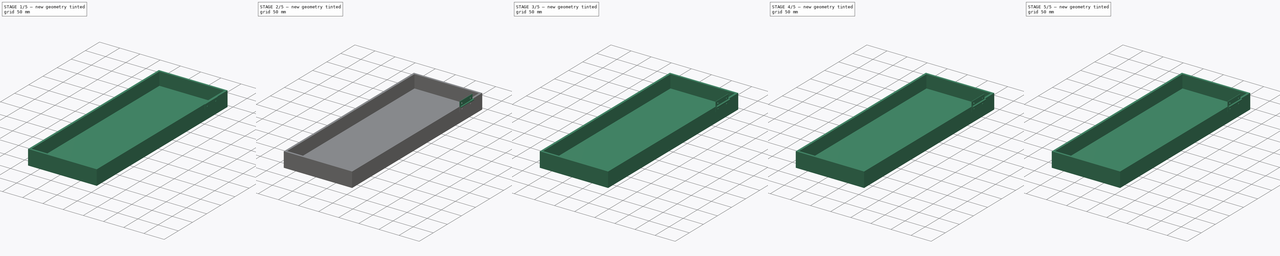
[diagram: build sequence overview — one tinted view per stage of 5, left to right]
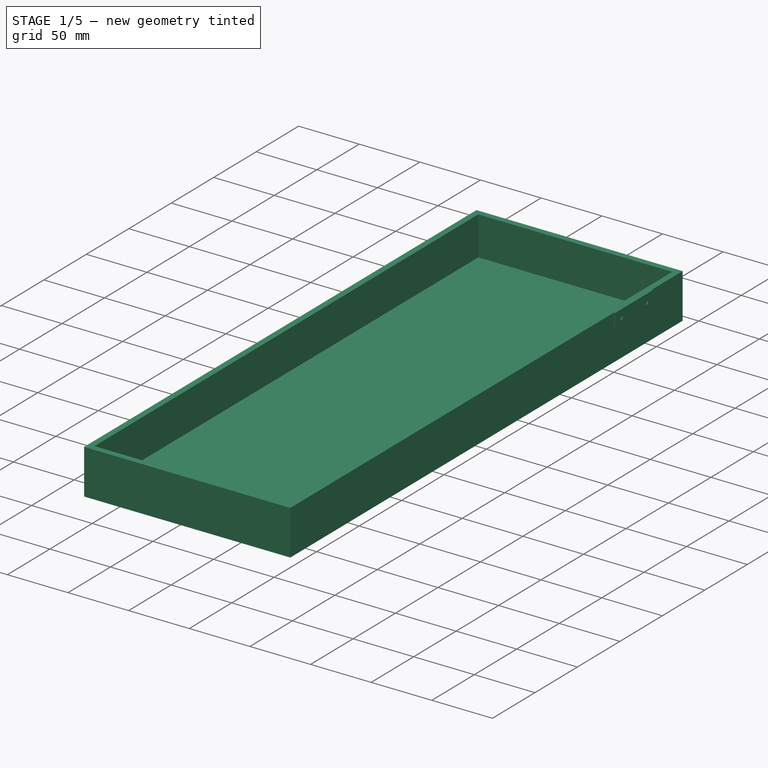
[diagram: stage 1 of 5 — iso view after this stage's code; geometry added in this stage tinted green]
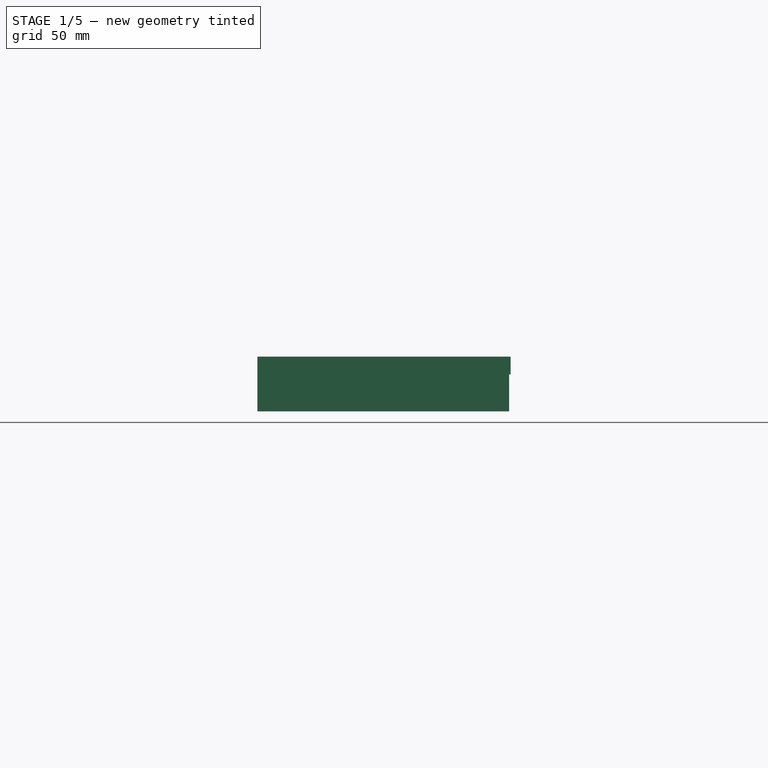
[diagram: stage 1 of 5 — front view after this stage's code; geometry added in this stage tinted green]
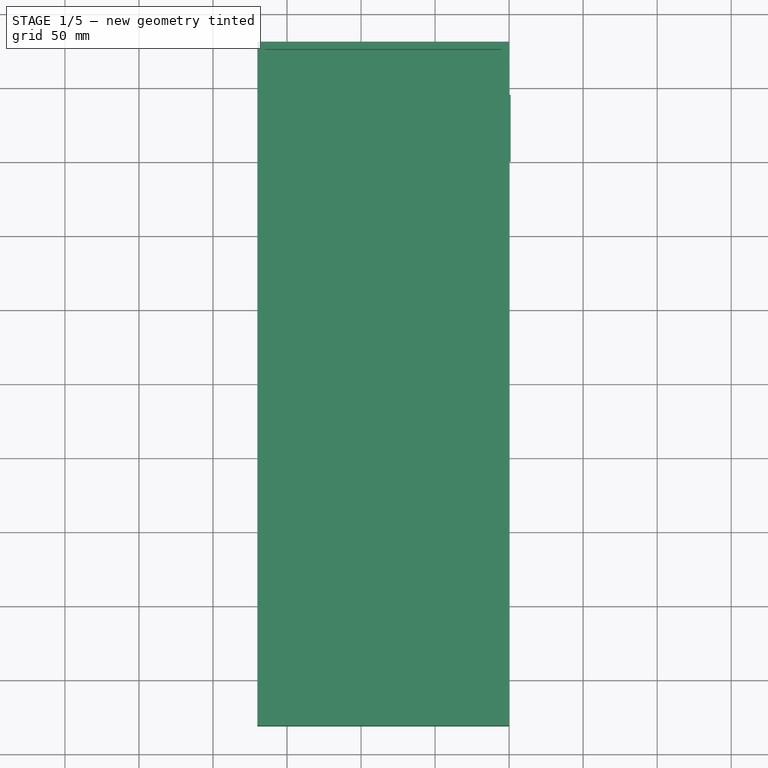
[diagram: stage 1 of 5 — top view after this stage's code; geometry added in this stage tinted green]
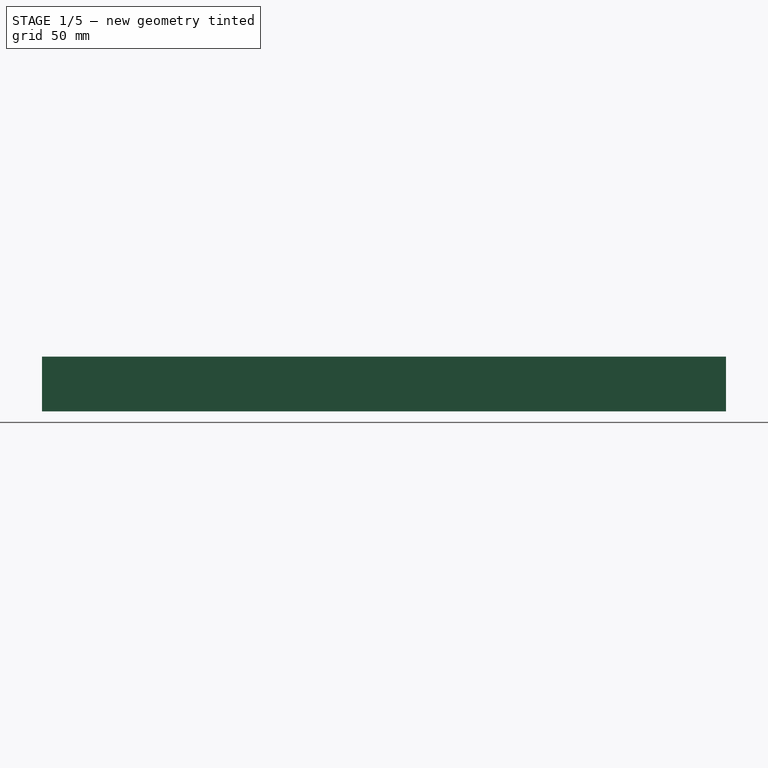
[diagram: stage 1 of 5 — right view after this stage's code; geometry added in this stage tinted green]
FCSTD DOCUMENT  (FreeCAD 2021.1015R24301 +3962 (Git))
Label: project
License: All rights reserved
LicenseURL: http://en.wikipedia.org/wiki/All_rights_reserved
objects: Sketcher::SketchObject×12, PartDesign::Pad×12, PartDesign::Body×7, PartDesign::LinearPattern×4, App::Part×3
note: 67 computed .brp shape members not serialized (recipe doc carries the construction recipe); baked Part::Feature solids carry a one-line shape summary decoded from their .brp

FEATURE [PartDesign::Body] Body003  label="UppeLip001"
  AutoGroupSolids = false
  ExportMode = 0
  Group = -> [Sketch005,Pad005,Sketch006,Pad006,LinearPattern002]
  Origin = -> Origin005
  Tip = -> LinearPattern002
  _ExportChildren = -> [Pad005,Pad006,LinearPattern002]
  _GroupVersion = 1
FEATURE [Sketcher::SketchObject] Sketch007
  FullyConstrained = false
  MapMode = 5
  Placement = pos=(0,0,0) rot=(0.57735,0.57735,0.57735;2.0944rad)
  Support = -> [YZ_Plane004]
  sketch-geometry (8):
    g0: LineSegment StartX=150 StartY=0 StartZ=0 EndX=195 EndY=0 EndZ=0
    g1: LineSegment StartX=195 StartY=0 StartZ=0 EndX=195 EndY=-12 EndZ=0
    g2: LineSegment StartX=195 StartY=-12 StartZ=0 EndX=150 EndY=-12 EndZ=0
    g3: LineSegment StartX=150 StartY=-12 StartZ=0 EndX=150 EndY=0 EndZ=0
    g4: Circle CenterX=157.5 CenterY=-6 CenterZ=0 NormalX=0 NormalY=0 NormalZ=1 AngleXU=0 Radius=2
    g5: Circle CenterX=187.5 CenterY=-6 CenterZ=0 NormalX=0 NormalY=0 NormalZ=1 AngleXU=0 Radius=2
    g6: LineSegment [constr] StartX=172.5 StartY=8.35987 StartZ=0 EndX=172.5 EndY=-22.1672 EndZ=0
    g7: LineSegment [constr] StartX=144.176 StartY=-6 StartZ=0 EndX=212.076 EndY=-6 EndZ=0
  constraints (19):
    c: Coincident(g0,g1)
    c: Coincident(g1,g2)
    c: Coincident(g2,g3)
    c: Coincident(g3,g0)
    c: Horizontal(g0)
    c: Horizontal(g2)
    c: Vertical(g1)
    c: Vertical(g3)
    c: DistanceX(g2,g2) = 45
    c: DistanceX(g-1,g2) = 150
    c: DistanceY(g1,g1) = 12
    c: Horizontal(g0,g-1)
    c: Equal(g4,g5)
    c: Symmetric(g0,g2,g7)
    c: Symmetric(g0,g0,g6)
    c: Diameter(g4) = 4
    c: DistanceX(g4,g5) = 30
    c: PointOnObject(g5,g7)
    c: Symmetric(g5,g4,g6)
FEATURE [PartDesign::Pad] Pad007
  ClaimChildren = false
  Direction = (1,1,1)
  Fit = 0
  FitJoin = 0
  InnerFit = 0
  InnerFitJoin = 0
  InnerTaperAngle = 0
  InnerTaperAngleRev = 0
  Length = 1
  Length2 = 100
  Linearize = true
  NewSolid = false
  Placement = pos=(0,0,0) rot=(0.57735,0.57735,0.57735;2.0944rad)
  Profile = -> Sketch007
  Suppress = false
  Type = 0
  _ProfileBasedVersion = 1
FEATURE [PartDesign::Body] Body005  label="Shaft001"
  AutoGroupSolids = false
  ExportMode = 0
  Group = -> [Sketch009,Pad009]
  Origin = -> Origin007
  Tip = -> Pad009
  _ExportChildren = -> [Pad009]
  _GroupVersion = 1
FEATURE [App::Part] Part001  label="RightHinge"
  ExportMode = 1
  Group = -> [Body003,Body004,Body005]
  Origin = -> Origin004
  Placement = pos=(0,-345,0) rot=(0,0,1;0rad)
  _ExportChildren = -> [Body003,Body004,Body005]
  _GroupVersion = 1
FEATURE [Sketcher::SketchObject] Sketch010
  FullyConstrained = false
  MapMode = 5
  Support = -> [XY_Plane006]
  sketch-geometry (10):
    g0: LineSegment StartX=-170 StartY=231 StartZ=0 EndX=0 EndY=231 EndZ=0
    g1: LineSegment StartX=0 StartY=231 StartZ=0 EndX=0 EndY=-231 EndZ=0
    g2: LineSegment StartX=0 StartY=-231 StartZ=0 EndX=-170 EndY=-231 EndZ=0
    g3: LineSegment StartX=-170 StartY=-231 StartZ=0 EndX=-170 EndY=231 EndZ=0
    g4: LineSegment StartX=-165 StartY=226 StartZ=0 EndX=-5 EndY=226 EndZ=0
    g5: LineSegment StartX=-5 StartY=226 StartZ=0 EndX=-5 EndY=-226 EndZ=0
    g6: LineSegment StartX=-5 StartY=-226 StartZ=0 EndX=-165 EndY=-226 EndZ=0
    g7: LineSegment StartX=-165 StartY=-226 StartZ=0 EndX=-165 EndY=226 EndZ=0
    g8: LineSegment [constr] StartX=-85 StartY=218.865 StartZ=0 EndX=-85 EndY=-216.555 EndZ=0
    g9: LineSegment [constr] StartX=-145.476 StartY=0 StartZ=0 EndX=-38.6355 EndY=0 EndZ=0
  constraints (26):
    c: Coincident(g0,g1)
    c: Coincident(g1,g2)
    c: Coincident(g2,g3)
    c: Coincident(g3,g0)
    c: Horizontal(g0)
    c: Horizontal(g2)
    c: Vertical(g1)
    c: Vertical(g3)
    c: Coincident(g4,g5)
    c: Coincident(g5,g6)
    c: Coincident(g6,g7)
    c: Coincident(g7,g4)
    c: Horizontal(g6)
    c: Vertical(g5)
    c: Symmetric(g4,g6,g9)
    c: Symmetric(g4,g4,g8)
    c: Symmetric(g0,g0,g8)
    c: Symmetric(g0,g2,g9)
    c: DistanceX(g4,g0) = 5
    c: DistanceY(g4,g0) = 5
    c: DistanceY(g2,g0) = 462
    c: DistanceX(g2,g1) = 170
    c: PointOnObject(g-1,g9)
    c: PointOnObject(g0,g-2)
    c: DistanceY(g6,g4) = 452
    c: DistanceX(g6,g5) = 160
FEATURE [PartDesign::Pad] Pad010
  ClaimChildren = false
  Direction = (1,1,1)
  Fit = 0
  FitJoin = 0
  InnerFit = 0
  InnerFitJoin = 0
  InnerTaperAngle = 0
  InnerTaperAngleRev = 0
  Length = 32
  Length2 = 100
  Linearize = true
  NewSolid = false
  Profile = -> Sketch010
  Reversed = true
  Suppress = false
  Type = 0
  _ProfileBasedVersion = 1
FEATURE [Sketcher::SketchObject] Sketch011
  ExternalGeometry = -> [Pad010]
  FullyConstrained = true
  MapMode = 5
  Placement = pos=(0,0,-32) rot=(1,0,0;3.14159rad)
  Support = -> [Pad010]
  sketch-geometry (4):
    g0: LineSegment StartX=-170 StartY=231 StartZ=0 EndX=0 EndY=231 EndZ=0
    g1: LineSegment StartX=0 StartY=231 StartZ=0 EndX=0 EndY=-231 EndZ=0
    g2: LineSegment StartX=0 StartY=-231 StartZ=0 EndX=-170 EndY=-231 EndZ=0
    g3: LineSegment StartX=-170 StartY=-231 StartZ=0 EndX=-170 EndY=231 EndZ=0
  constraints (10):
    c: Coincident(g0,g1)
    c: Coincident(g1,g2)
    c: Coincident(g2,g3)
    c: Coincident(g3,g0)
    c: Horizontal(g0)
    c: Horizontal(g2)
    c: Vertical(g1)
    c: Vertical(g3)
    c: Coincident(g-4,g1)
    c: Coincident(g-3,g0)
FEATURE [PartDesign::Pad] Pad011
  BaseFeature = -> Pad010
  ClaimChildren = false
  Direction = (1,1,1)
  Fit = 0
  FitJoin = 0
  InnerFit = 0
  InnerFitJoin = 0
  InnerTaperAngle = 0
  InnerTaperAngleRev = 0
  Length = 5
  Length2 = 100
  Linearize = true
  NewSolid = false
  Profile = -> Sketch011
  Suppress = false
  Type = 0
  _ProfileBasedVersion = 1
FEATURE [PartDesign::Body] Body006
  AutoGroupSolids = false
  ExportMode = 0
  Group = -> [Sketch010,Pad010,Sketch011,Pad011]
  Origin = -> Origin009
  Tip = -> Pad011
  _ExportChildren = -> [Pad010,Pad011]
  _GroupVersion = 1
FEATURE [App::Part] Part002  label="Part"
  ExportMode = 1
  Group = -> [Body006]
  Origin = -> Origin008
  _ExportChildren = -> [Body006]
  _GroupVersion = 1
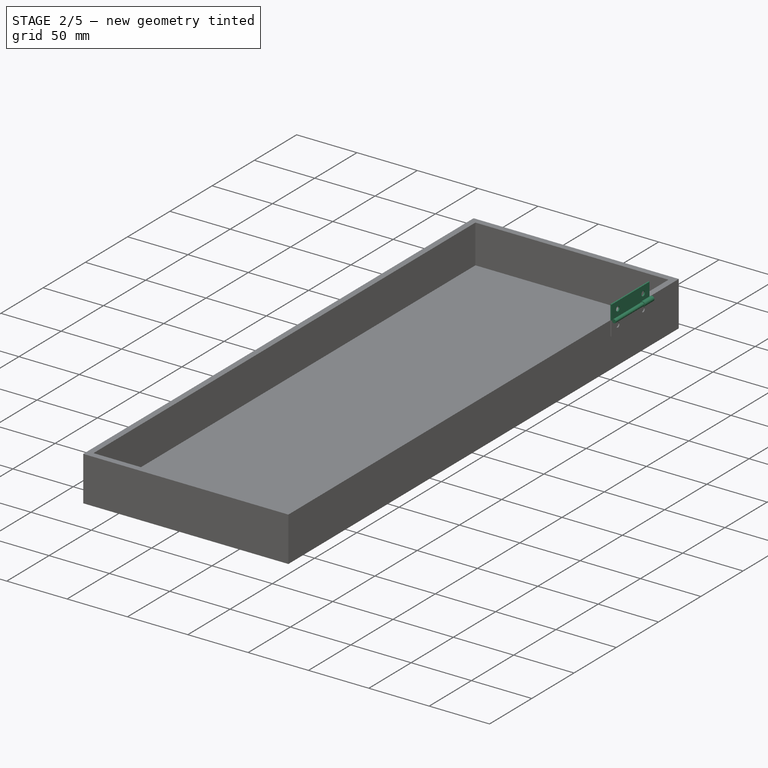
[diagram: stage 2 of 5 — iso view after this stage's code; geometry added in this stage tinted green]
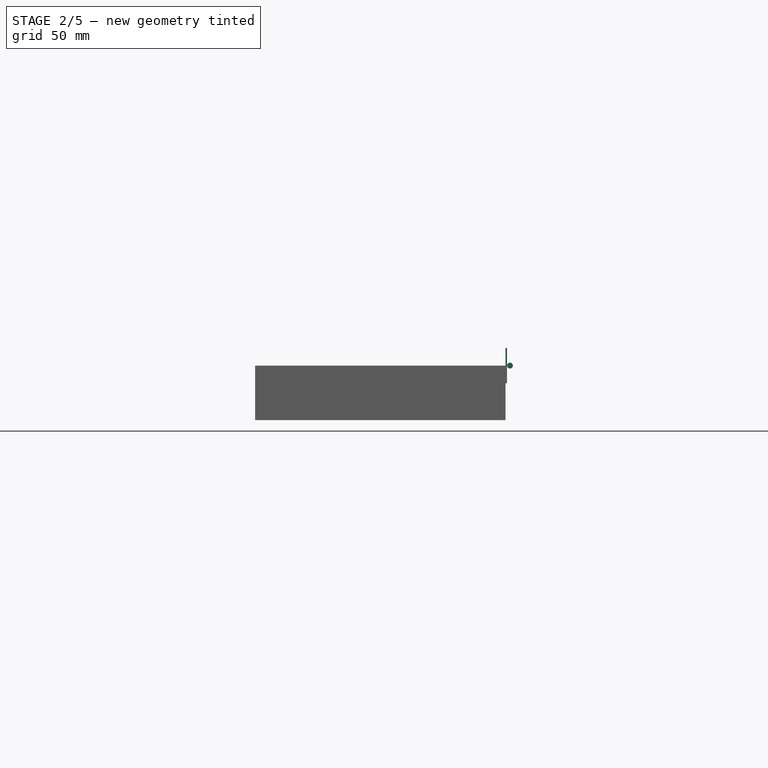
[diagram: stage 2 of 5 — front view after this stage's code; geometry added in this stage tinted green]
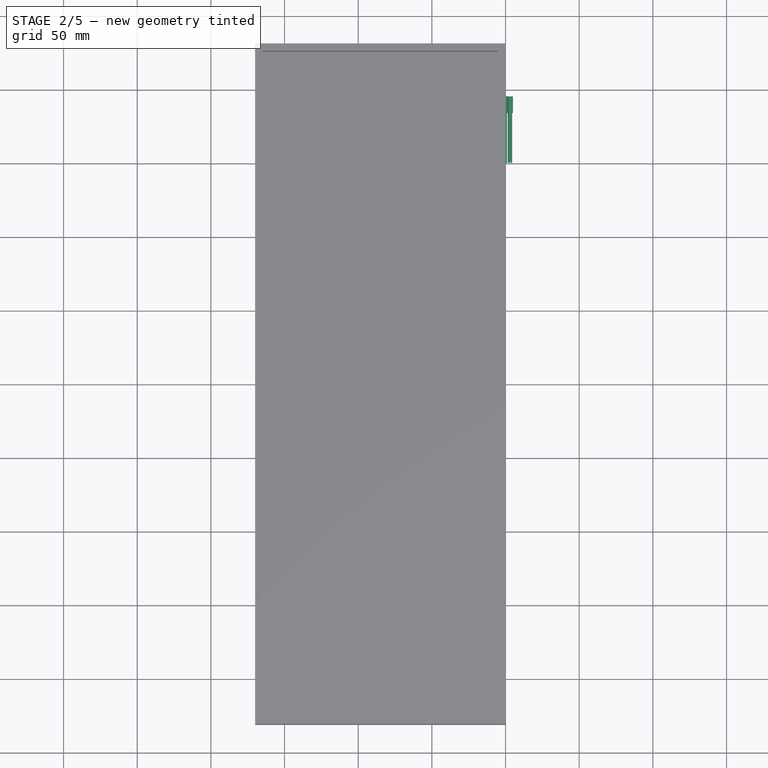
[diagram: stage 2 of 5 — top view after this stage's code; geometry added in this stage tinted green]
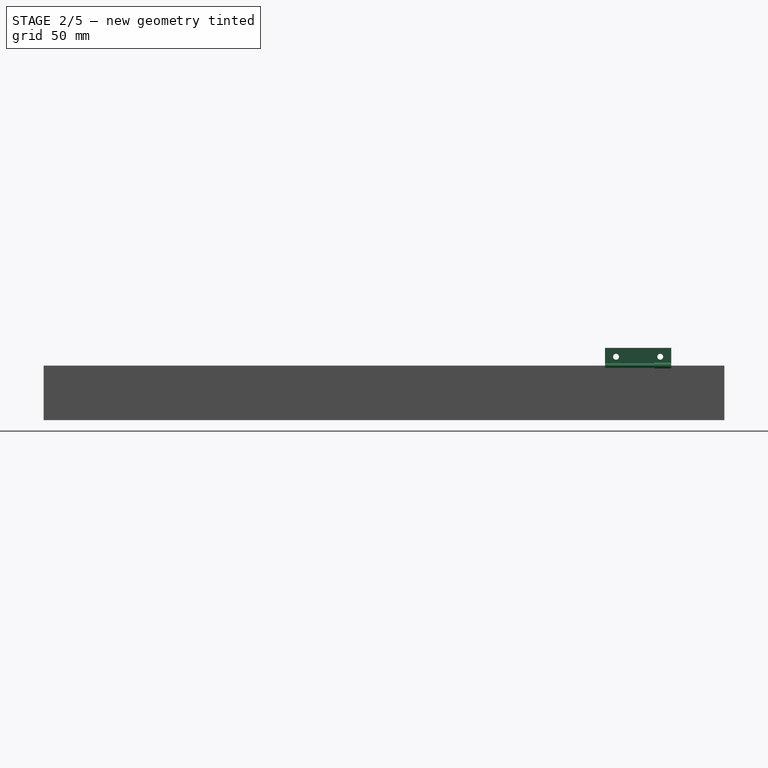
[diagram: stage 2 of 5 — right view after this stage's code; geometry added in this stage tinted green]
FEATURE [PartDesign::Body] Body002  label="Shaft"
  AutoGroupSolids = false
  ExportMode = 0
  Group = -> [Sketch004,Pad004]
  Origin = -> Origin003
  Tip = -> Pad004
  _ExportChildren = -> [Pad004]
  _GroupVersion = 1
FEATURE [App::Part] Part  label="LeftHinge"
  ExportMode = 1
  Group = -> [Body,Body001,Body002]
  Origin = -> Origin
  _ExportChildren = -> [Body,Body001,Body002]
  _GroupVersion = 1
FEATURE [Sketcher::SketchObject] Sketch005
  FullyConstrained = false
  MapMode = 5
  Placement = pos=(0,0,0) rot=(0.57735,0.57735,0.57735;2.0944rad)
  Support = -> [YZ_Plane003]
  sketch-geometry (8):
    g0: LineSegment StartX=150 StartY=12 StartZ=0 EndX=195 EndY=12 EndZ=0
    g1: LineSegment StartX=195 StartY=12 StartZ=0 EndX=195 EndY=0 EndZ=0
    g2: LineSegment StartX=195 StartY=0 StartZ=0 EndX=150 EndY=0 EndZ=0
    g3: LineSegment StartX=150 StartY=0 StartZ=0 EndX=150 EndY=12 EndZ=0
    g4: Circle CenterX=157.5 CenterY=6 CenterZ=0 NormalX=0 NormalY=0 NormalZ=1 AngleXU=0 Radius=2
    g5: Circle CenterX=187.5 CenterY=6 CenterZ=0 NormalX=0 NormalY=0 NormalZ=1 AngleXU=0 Radius=2
    g6: LineSegment [constr] StartX=172.5 StartY=30.2463 StartZ=0 EndX=172.5 EndY=-21.013 EndZ=0
    g7: LineSegment [constr] StartX=140.801 StartY=6 StartZ=0 EndX=211.181 EndY=6 EndZ=0
  constraints (19):
    c: Coincident(g0,g1)
    c: Coincident(g1,g2)
    c: Coincident(g2,g3)
    c: Coincident(g3,g0)
    c: Horizontal(g0)
    c: Horizontal(g2)
    c: Vertical(g1)
    c: Vertical(g3)
    c: DistanceX(g0,g0) = 45
    c: DistanceX(g-1,g0) = 150
    c: DistanceY(g1,g1) = 12
    c: Horizontal(g2,g-1)
    c: Equal(g4,g5)
    c: DistanceX(g4,g5) = 30
    c: Diameter(g5) = 4
    c: Symmetric(g4,g5,g6)
    c: Symmetric(g0,g0,g6)
    c: Symmetric(g0,g2,g7)
    c: PointOnObject(g4,g7)
FEATURE [PartDesign::Pad] Pad005
  ClaimChildren = false
  Direction = (1,1,1)
  Fit = 0
  FitJoin = 0
  InnerFit = 0
  InnerFitJoin = 0
  InnerTaperAngle = 0
  InnerTaperAngleRev = 0
  Length = 1
  Length2 = 100
  Linearize = true
  NewSolid = false
  Placement = pos=(0,0,0) rot=(0.57735,0.57735,0.57735;2.0944rad)
  Profile = -> Sketch005
  Suppress = false
  Type = 0
  _ProfileBasedVersion = 1
FEATURE [Sketcher::SketchObject] Sketch008
  ExternalGeometry = -> [Pad007]
  FullyConstrained = true
  MapMode = 5
  Placement = pos=(8.66e-14,195,-6.49e-14) rot=(0.57735,0.57735,0.57735;4.18879rad)
  Support = -> [Pad007]
  sketch-geometry (2):
    g0: Circle CenterX=0 CenterY=3 CenterZ=0 NormalX=0 NormalY=0 NormalZ=1 AngleXU=0 Radius=1.5
    g1: Circle CenterX=0 CenterY=3 CenterZ=0 NormalX=0 NormalY=0 NormalZ=1 AngleXU=0 Radius=2
  constraints (5):
    c: Coincident(g1,g0)
    c: Diameter(g1) = 4
    c: Diameter(g0) = 3
    c: Vertical(g0,g-1)
    c: PointOnObject(g-3,g1)
FEATURE [PartDesign::Pad] Pad008
  BaseFeature = -> Pad007
  ClaimChildren = false
  Direction = (1,1,1)
  Fit = 0
  FitJoin = 0
  InnerFit = 0
  InnerFitJoin = 0
  InnerTaperAngle = 0
  InnerTaperAngleRev = 0
  Length = 11.25
  Length2 = 100
  Linearize = true
  NewSolid = false
  Placement = pos=(0,0,0) rot=(0.57735,0.57735,0.57735;2.0944rad)
  Profile = -> Sketch008
  Reversed = true
  Suppress = false
  Type = 0
  _ProfileBasedVersion = 1
FEATURE [PartDesign::Body] Body004  label="BottomLip001"
  AutoGroupSolids = false
  ExportMode = 0
  Group = -> [Sketch007,Pad007,Sketch008,Pad008,LinearPattern003]
  Origin = -> Origin006
  Tip = -> LinearPattern003
  _ExportChildren = -> [Pad007,Pad008,LinearPattern003]
  _GroupVersion = 1
FEATURE [Sketcher::SketchObject] Sketch009
  FullyConstrained = true
  MapMode = 5
  Placement = pos=(6.66e-14,150,-9.99e-14) rot=(1,0,0;1.5708rad)
  sketch-geometry (1):
    g0: Circle CenterX=3 CenterY=0 CenterZ=0 NormalX=0 NormalY=0 NormalZ=1 AngleXU=0 Radius=1.5
  constraints (3):
    c: Horizontal(g0,g-1)
    c: Diameter(g0) = 3
    c: DistanceX(g-1,g0) = 3
FEATURE [PartDesign::Pad] Pad009
  ClaimChildren = false
  Direction = (1,1,1)
  Fit = 0
  FitJoin = 0
  InnerFit = 0
  InnerFitJoin = 0
  InnerTaperAngle = 0
  InnerTaperAngleRev = 0
  Length = 45
  Length2 = 100
  Linearize = true
  NewSolid = false
  Placement = pos=(6.66e-14,150,-9.99e-14) rot=(1,0,0;1.5708rad)
  Profile = -> Sketch009
  Reversed = true
  Suppress = false
  Type = 0
  _ProfileBasedVersion = 1
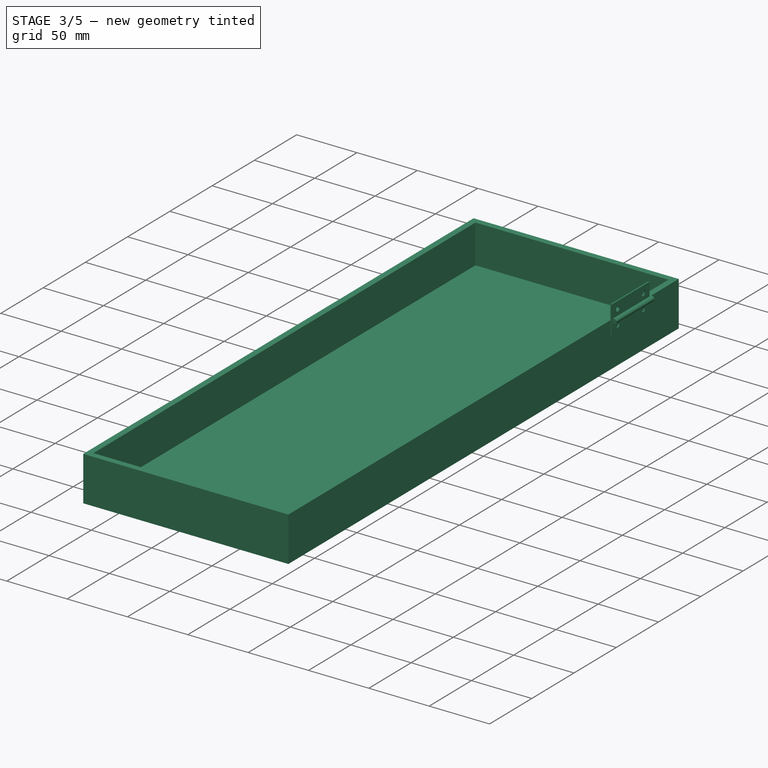
[diagram: stage 3 of 5 — iso view after this stage's code; geometry added in this stage tinted green]
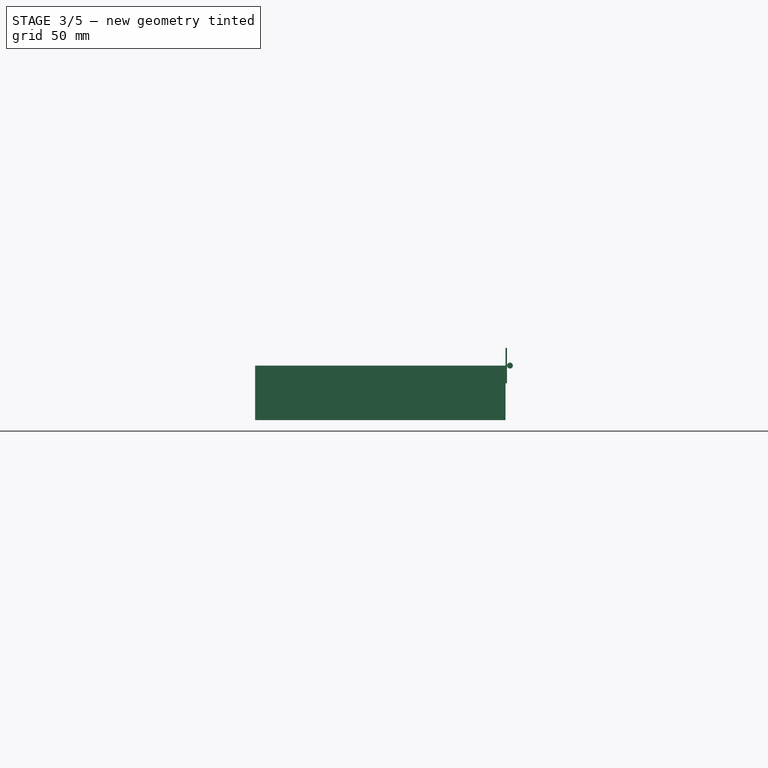
[diagram: stage 3 of 5 — front view after this stage's code; geometry added in this stage tinted green]
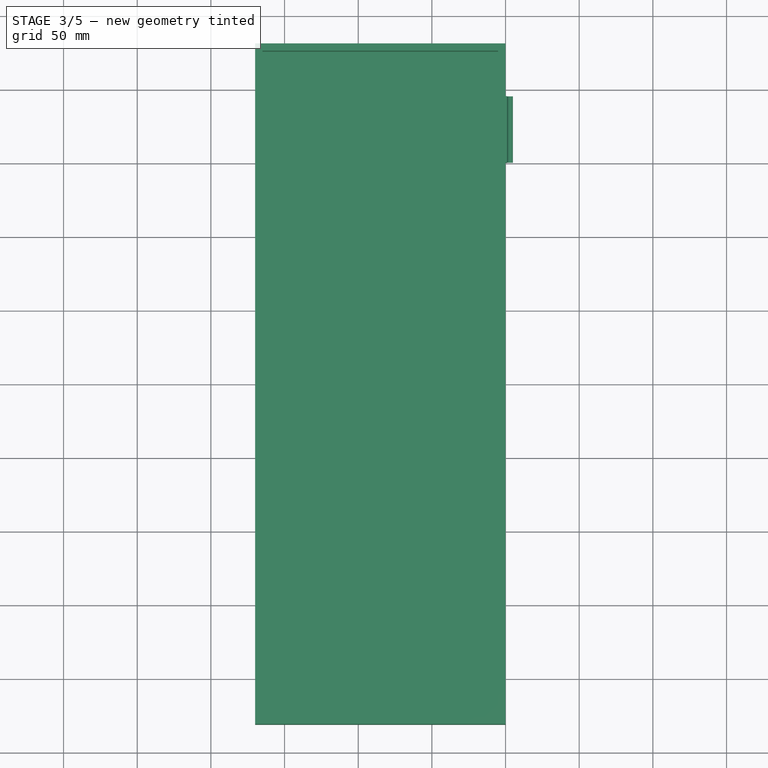
[diagram: stage 3 of 5 — top view after this stage's code; geometry added in this stage tinted green]
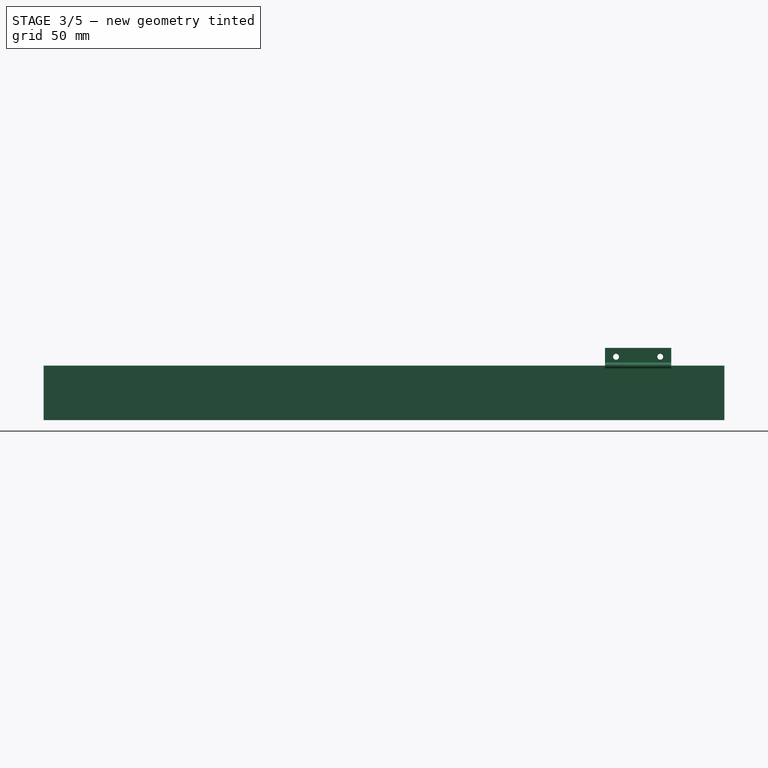
[diagram: stage 3 of 5 — right view after this stage's code; geometry added in this stage tinted green]
FEATURE [PartDesign::Body] Body001  label="BottomLip"
  AutoGroupSolids = false
  ExportMode = 0
  Group = -> [Sketch002,Pad002,Sketch003,Pad003,LinearPattern001]
  Origin = -> Origin002
  Tip = -> LinearPattern001
  _ExportChildren = -> [Pad002,Pad003,LinearPattern001]
  _GroupVersion = 1
FEATURE [Sketcher::SketchObject] Sketch004
  FullyConstrained = true
  MapMode = 5
  Placement = pos=(6.66e-14,150,-9.99e-14) rot=(1,0,0;1.5708rad)
  sketch-geometry (1):
    g0: Circle CenterX=3 CenterY=0 CenterZ=0 NormalX=0 NormalY=0 NormalZ=1 AngleXU=0 Radius=1.5
  constraints (3):
    c: Horizontal(g0,g-1)
    c: Diameter(g0) = 3
    c: DistanceX(g-1,g0) = 3
FEATURE [PartDesign::Pad] Pad004
  ClaimChildren = false
  Direction = (1,1,1)
  Fit = 0
  FitJoin = 0
  InnerFit = 0
  InnerFitJoin = 0
  InnerTaperAngle = 0
  InnerTaperAngleRev = 0
  Length = 45
  Length2 = 100
  Linearize = true
  NewSolid = false
  Placement = pos=(6.66e-14,150,-9.99e-14) rot=(1,0,0;1.5708rad)
  Profile = -> Sketch004
  Reversed = true
  Suppress = false
  Type = 0
  _ProfileBasedVersion = 1
FEATURE [Sketcher::SketchObject] Sketch006
  ExternalGeometry = -> [Pad005]
  FullyConstrained = true
  MapMode = 5
  Placement = pos=(6.66e-14,150,-5e-14) rot=(-0.57735,-0.57735,0.57735;4.18879rad)
  Support = -> [Pad005]
  sketch-geometry (2):
    g0: Circle CenterX=0 CenterY=3 CenterZ=0 NormalX=0 NormalY=0 NormalZ=1 AngleXU=0 Radius=2
    g1: Circle CenterX=0 CenterY=3 CenterZ=0 NormalX=0 NormalY=0 NormalZ=1 AngleXU=0 Radius=1.5
  constraints (5):
    c: Diameter(g0) = 4
    c: Vertical(g0,g-1)
    c: PointOnObject(g-3,g0)
    c: Diameter(g1) = 3
    c: Coincident(g1,g0)
FEATURE [PartDesign::Pad] Pad006
  BaseFeature = -> Pad005
  ClaimChildren = false
  Direction = (1,1,1)
  Fit = 0
  FitJoin = 0
  InnerFit = 0
  InnerFitJoin = 0
  InnerTaperAngle = 0
  InnerTaperAngleRev = 0
  Length = 11.25
  Length2 = 100
  Linearize = true
  NewSolid = false
  Placement = pos=(0,0,0) rot=(0.57735,0.57735,0.57735;2.0944rad)
  Profile = -> Sketch006
  Reversed = true
  Suppress = false
  Type = 0
  _ProfileBasedVersion = 1
FEATURE [PartDesign::LinearPattern] LinearPattern002
  BaseFeature = -> Pad006
  CopyShape = false
  Direction = -> Sketch006 [N_Axis]
  Length = 22.5
  NewSolid = false
  Occurrences = 2
  OriginalSubs = -> [Pad006]
  Originals = -> [Pad006]
  ParallelTransform = true
  Placement = pos=(0,0,0) rot=(0.57735,0.57735,0.57735;2.0944rad)
  Reversed = true
  SubTransform = true
  Suppress = false
FEATURE [PartDesign::LinearPattern] LinearPattern003
  BaseFeature = -> Pad008
  CopyShape = false
  Direction = -> Sketch008 [N_Axis]
  Length = 22.5
  NewSolid = false
  Occurrences = 2
  OriginalSubs = -> [Pad008]
  Originals = -> [Pad008]
  ParallelTransform = true
  Placement = pos=(0,0,0) rot=(0.57735,0.57735,0.57735;2.0944rad)
  Reversed = true
  SubTransform = true
  Suppress = false
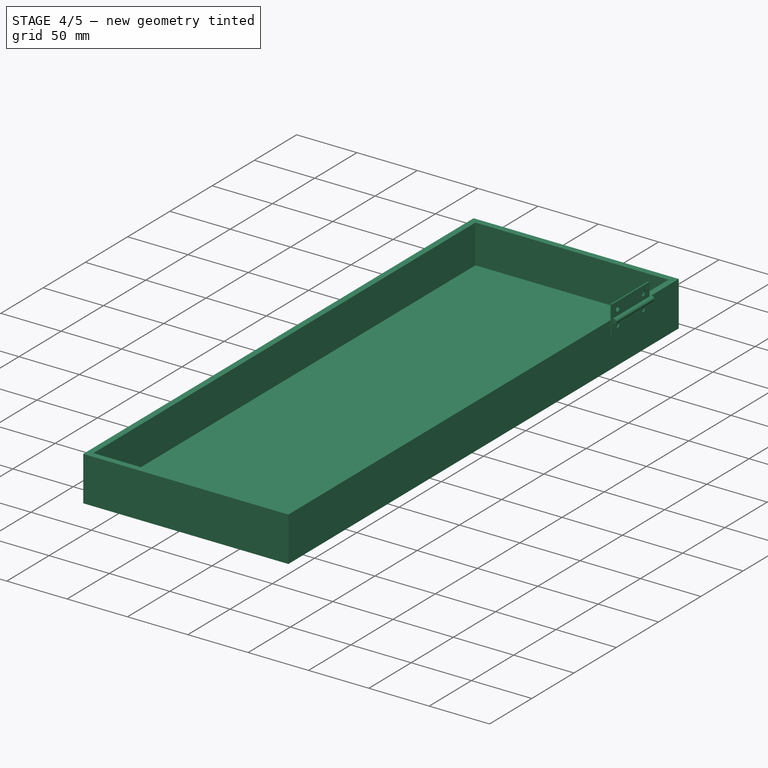
[diagram: stage 4 of 5 — iso view after this stage's code; geometry added in this stage tinted green]
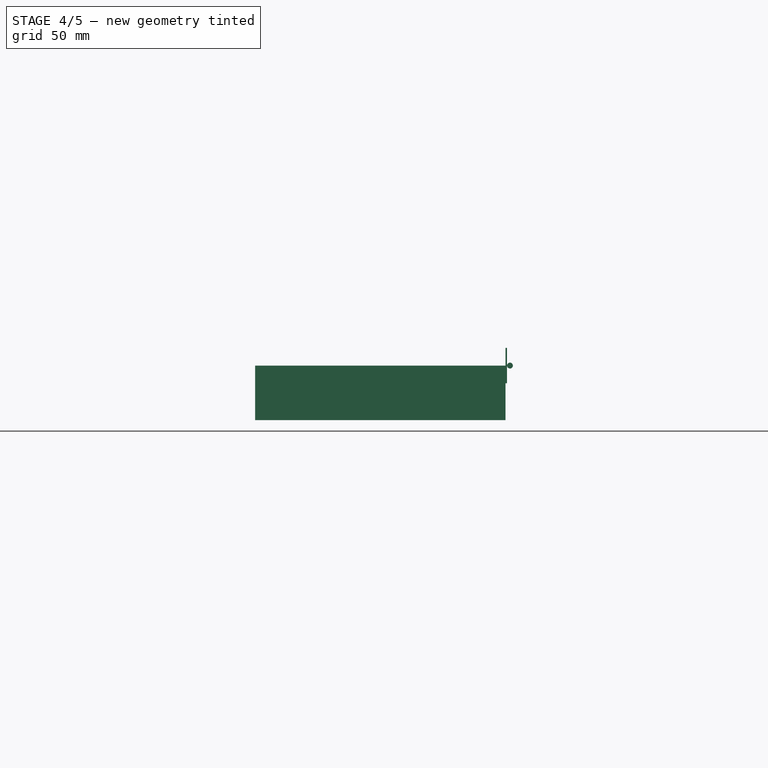
[diagram: stage 4 of 5 — front view after this stage's code; geometry added in this stage tinted green]
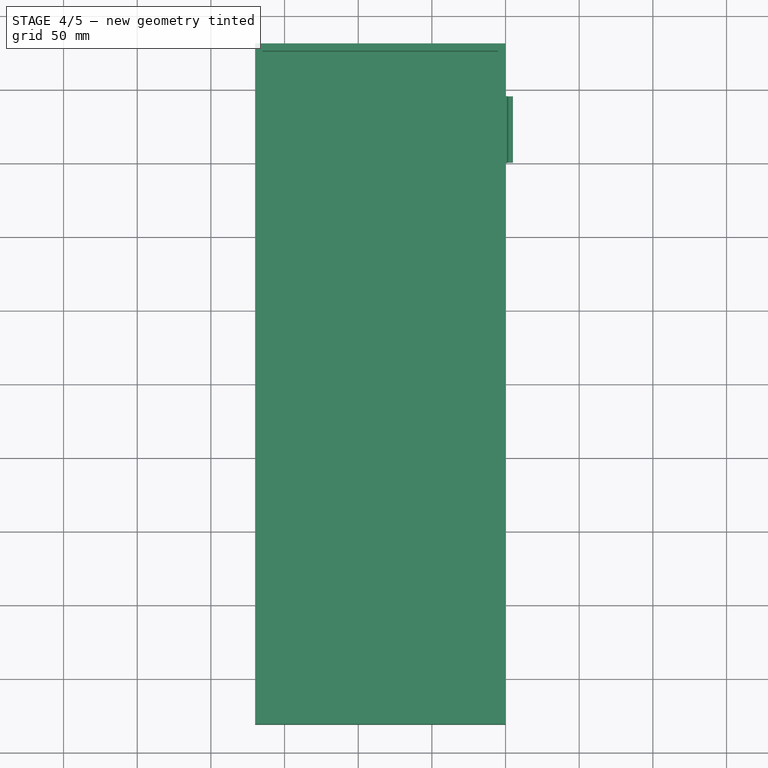
[diagram: stage 4 of 5 — top view after this stage's code; geometry added in this stage tinted green]
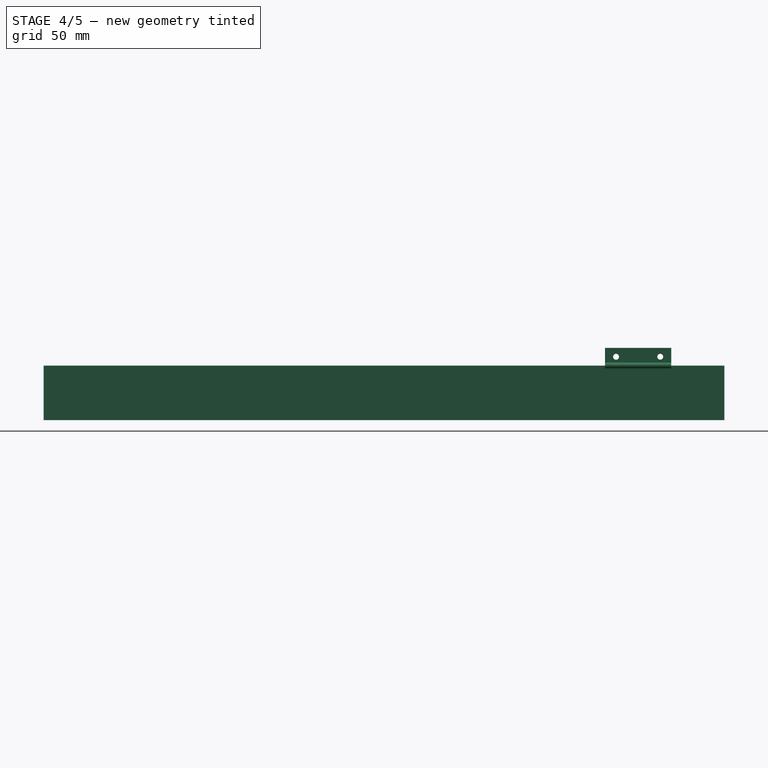
[diagram: stage 4 of 5 — right view after this stage's code; geometry added in this stage tinted green]
FEATURE [PartDesign::Body] Body  label="UppeLip"
  AutoGroupSolids = false
  ExportMode = 0
  Group = -> [Sketch,Pad,Sketch001,Pad001,LinearPattern]
  Origin = -> Origin001
  Tip = -> LinearPattern
  _ExportChildren = -> [Pad,Pad001,LinearPattern]
  _GroupVersion = 1
FEATURE [Sketcher::SketchObject] Sketch002
  FullyConstrained = false
  MapMode = 5
  Placement = pos=(0,0,0) rot=(0.57735,0.57735,0.57735;2.0944rad)
  Support = -> [YZ_Plane001]
  sketch-geometry (8):
    g0: LineSegment StartX=150 StartY=0 StartZ=0 EndX=195 EndY=0 EndZ=0
    g1: LineSegment StartX=195 StartY=0 StartZ=0 EndX=195 EndY=-12 EndZ=0
    g2: LineSegment StartX=195 StartY=-12 StartZ=0 EndX=150 EndY=-12 EndZ=0
    g3: LineSegment StartX=150 StartY=-12 StartZ=0 EndX=150 EndY=0 EndZ=0
    g4: Circle CenterX=157.5 CenterY=-6 CenterZ=0 NormalX=0 NormalY=0 NormalZ=1 AngleXU=0 Radius=2
    g5: Circle CenterX=187.5 CenterY=-6 CenterZ=0 NormalX=0 NormalY=0 NormalZ=1 AngleXU=0 Radius=2
    g6: LineSegment [constr] StartX=172.5 StartY=8.35987 StartZ=0 EndX=172.5 EndY=-22.1672 EndZ=0
    g7: LineSegment [constr] StartX=144.176 StartY=-6 StartZ=0 EndX=212.076 EndY=-6 EndZ=0
  constraints (19):
    c: Coincident(g0,g1)
    c: Coincident(g1,g2)
    c: Coincident(g2,g3)
    c: Coincident(g3,g0)
    c: Horizontal(g0)
    c: Horizontal(g2)
    c: Vertical(g1)
    c: Vertical(g3)
    c: DistanceX(g2,g2) = 45
    c: DistanceX(g-1,g2) = 150
    c: DistanceY(g1,g1) = 12
    c: Horizontal(g0,g-1)
    c: Equal(g4,g5)
    c: Symmetric(g0,g2,g7)
    c: Symmetric(g0,g0,g6)
    c: Diameter(g4) = 4
    c: DistanceX(g4,g5) = 30
    c: PointOnObject(g5,g7)
    c: Symmetric(g5,g4,g6)
FEATURE [PartDesign::Pad] Pad002
  ClaimChildren = false
  Direction = (1,1,1)
  Fit = 0
  FitJoin = 0
  InnerFit = 0
  InnerFitJoin = 0
  InnerTaperAngle = 0
  InnerTaperAngleRev = 0
  Length = 1
  Length2 = 100
  Linearize = true
  NewSolid = false
  Placement = pos=(0,0,0) rot=(0.57735,0.57735,0.57735;2.0944rad)
  Profile = -> Sketch002
  Suppress = false
  Type = 0
  _ProfileBasedVersion = 1
FEATURE [Sketcher::SketchObject] Sketch003
  ExternalGeometry = -> [Pad002]
  FullyConstrained = true
  MapMode = 5
  Placement = pos=(8.66e-14,195,-6.49e-14) rot=(0.57735,0.57735,0.57735;4.18879rad)
  Support = -> [Pad002]
  sketch-geometry (2):
    g0: Circle CenterX=0 CenterY=3 CenterZ=0 NormalX=0 NormalY=0 NormalZ=1 AngleXU=0 Radius=1.5
    g1: Circle CenterX=0 CenterY=3 CenterZ=0 NormalX=0 NormalY=0 NormalZ=1 AngleXU=0 Radius=2
  constraints (5):
    c: Coincident(g1,g0)
    c: Diameter(g1) = 4
    c: Diameter(g0) = 3
    c: Vertical(g0,g-1)
    c: PointOnObject(g-3,g1)
FEATURE [PartDesign::Pad] Pad003
  BaseFeature = -> Pad002
  ClaimChildren = false
  Direction = (1,1,1)
  Fit = 0
  FitJoin = 0
  InnerFit = 0
  InnerFitJoin = 0
  InnerTaperAngle = 0
  InnerTaperAngleRev = 0
  Length = 11.25
  Length2 = 100
  Linearize = true
  NewSolid = false
  Placement = pos=(0,0,0) rot=(0.57735,0.57735,0.57735;2.0944rad)
  Profile = -> Sketch003
  Reversed = true
  Suppress = false
  Type = 0
  _ProfileBasedVersion = 1
FEATURE [PartDesign::LinearPattern] LinearPattern001
  BaseFeature = -> Pad003
  CopyShape = false
  Direction = -> Sketch003 [N_Axis]
  Length = 22.5
  NewSolid = false
  Occurrences = 2
  OriginalSubs = -> [Pad003]
  Originals = -> [Pad003]
  ParallelTransform = true
  Placement = pos=(0,0,0) rot=(0.57735,0.57735,0.57735;2.0944rad)
  Reversed = true
  SubTransform = true
  Suppress = false
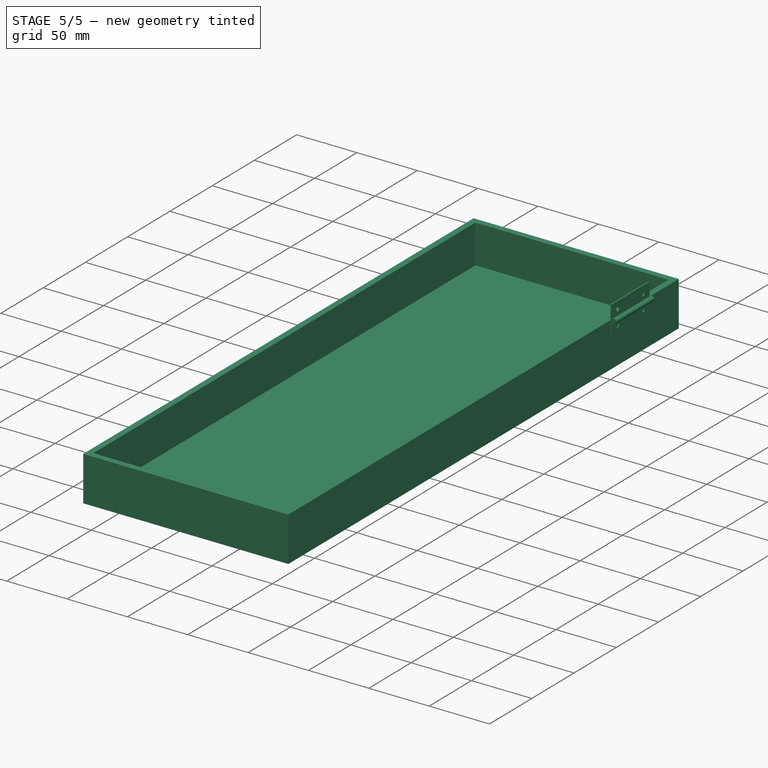
[diagram: stage 5 of 5 — iso view after this stage's code; geometry added in this stage tinted green]
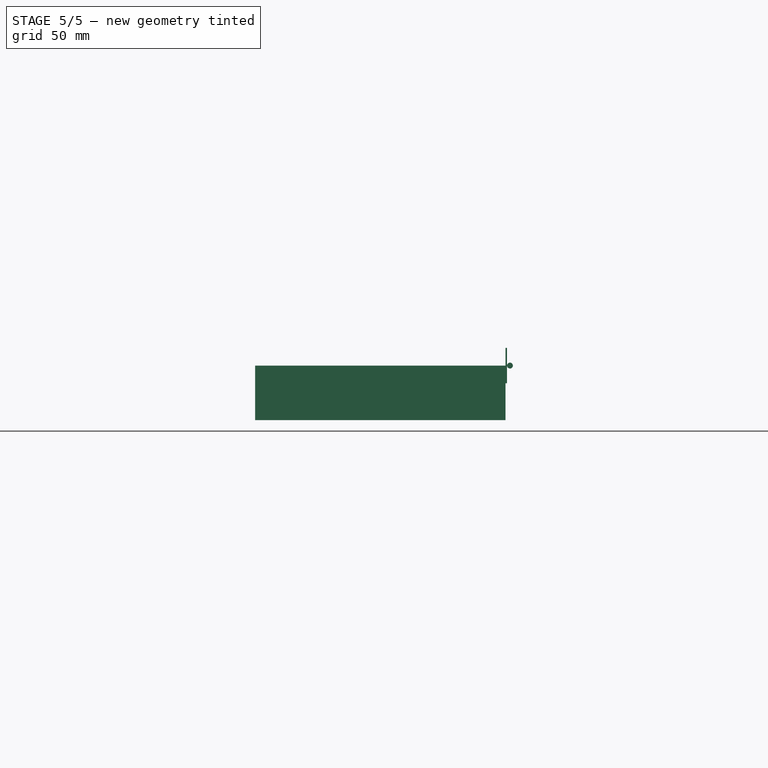
[diagram: stage 5 of 5 — front view after this stage's code; geometry added in this stage tinted green]
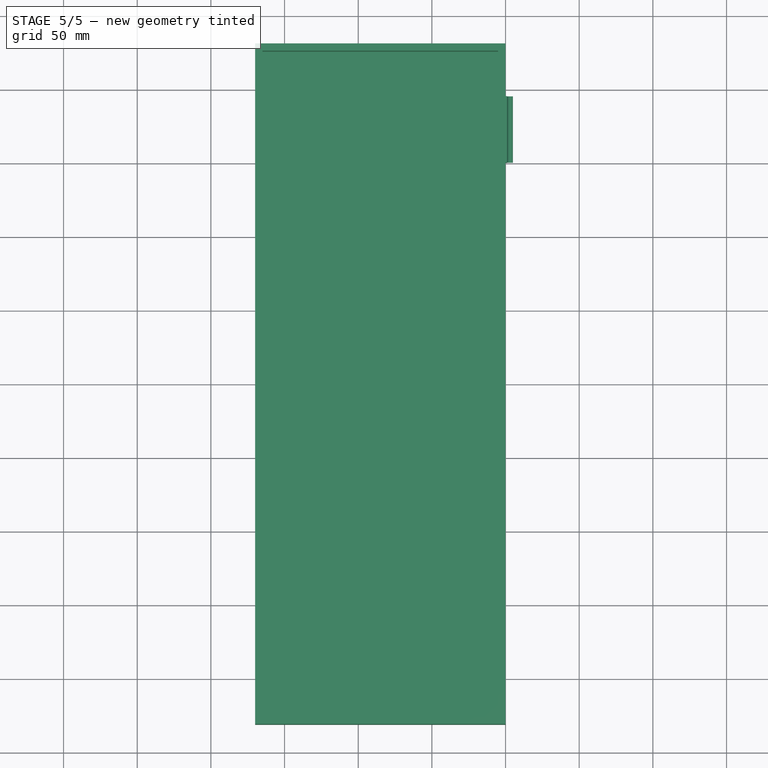
[diagram: stage 5 of 5 — top view after this stage's code; geometry added in this stage tinted green]
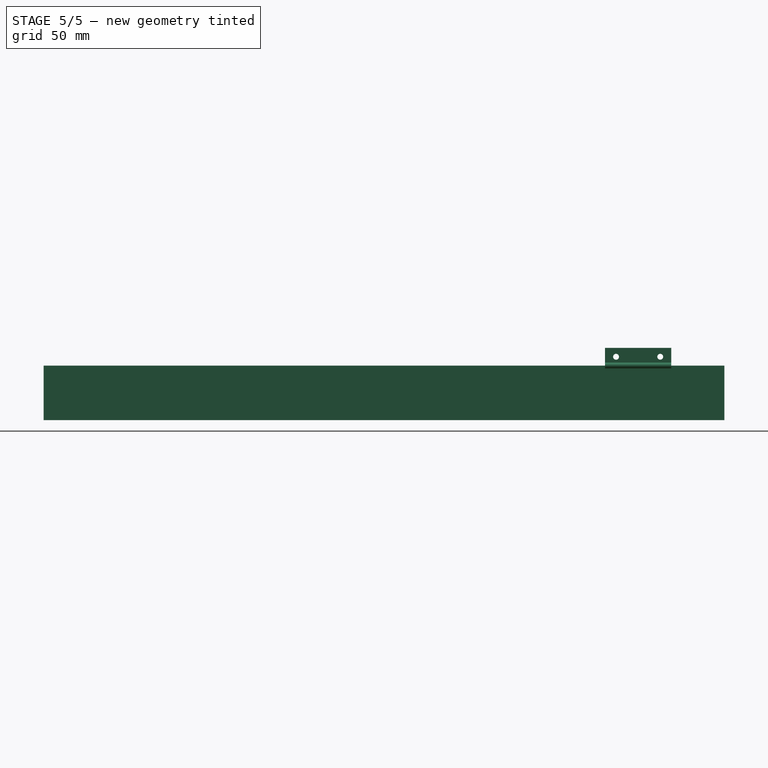
[diagram: stage 5 of 5 — right view after this stage's code; geometry added in this stage tinted green]
FEATURE [Sketcher::SketchObject] Sketch
  FullyConstrained = false
  MapMode = 5
  Placement = pos=(0,0,0) rot=(0.57735,0.57735,0.57735;2.0944rad)
  Support = -> [YZ_Plane]
  sketch-geometry (8):
    g0: LineSegment StartX=150 StartY=12 StartZ=0 EndX=195 EndY=12 EndZ=0
    g1: LineSegment StartX=195 StartY=12 StartZ=0 EndX=195 EndY=0 EndZ=0
    g2: LineSegment StartX=195 StartY=0 StartZ=0 EndX=150 EndY=0 EndZ=0
    g3: LineSegment StartX=150 StartY=0 StartZ=0 EndX=150 EndY=12 EndZ=0
    g4: Circle CenterX=157.5 CenterY=6 CenterZ=0 NormalX=0 NormalY=0 NormalZ=1 AngleXU=0 Radius=2
    g5: Circle CenterX=187.5 CenterY=6 CenterZ=0 NormalX=0 NormalY=0 NormalZ=1 AngleXU=0 Radius=2
    g6: LineSegment [constr] StartX=172.5 StartY=30.2463 StartZ=0 EndX=172.5 EndY=-21.013 EndZ=0
    g7: LineSegment [constr] StartX=140.801 StartY=6 StartZ=0 EndX=211.181 EndY=6 EndZ=0
  constraints (19):
    c: Coincident(g0,g1)
    c: Coincident(g1,g2)
    c: Coincident(g2,g3)
    c: Coincident(g3,g0)
    c: Horizontal(g0)
    c: Horizontal(g2)
    c: Vertical(g1)
    c: Vertical(g3)
    c: DistanceX(g0,g0) = 45
    c: DistanceX(g-1,g0) = 150
    c: DistanceY(g1,g1) = 12
    c: Horizontal(g2,g-1)
    c: Equal(g4,g5)
    c: DistanceX(g4,g5) = 30
    c: Diameter(g5) = 4
    c: Symmetric(g4,g5,g6)
    c: Symmetric(g0,g0,g6)
    c: Symmetric(g0,g2,g7)
    c: PointOnObject(g4,g7)
FEATURE [PartDesign::Pad] Pad
  ClaimChildren = false
  Direction = (1,1,1)
  Fit = 0
  FitJoin = 0
  InnerFit = 0
  InnerFitJoin = 0
  InnerTaperAngle = 0
  InnerTaperAngleRev = 0
  Length = 1
  Length2 = 100
  Linearize = true
  NewSolid = false
  Placement = pos=(0,0,0) rot=(0.57735,0.57735,0.57735;2.0944rad)
  Profile = -> Sketch
  Suppress = false
  Type = 0
  _ProfileBasedVersion = 1
FEATURE [Sketcher::SketchObject] Sketch001
  ExternalGeometry = -> [Pad]
  FullyConstrained = true
  MapMode = 5
  Placement = pos=(6.66e-14,150,-5e-14) rot=(-0.57735,-0.57735,0.57735;4.18879rad)
  Support = -> [Pad]
  sketch-geometry (2):
    g0: Circle CenterX=0 CenterY=3 CenterZ=0 NormalX=0 NormalY=0 NormalZ=1 AngleXU=0 Radius=2
    g1: Circle CenterX=0 CenterY=3 CenterZ=0 NormalX=0 NormalY=0 NormalZ=1 AngleXU=0 Radius=1.5
  constraints (5):
    c: Diameter(g0) = 4
    c: Vertical(g0,g-1)
    c: PointOnObject(g-3,g0)
    c: Diameter(g1) = 3
    c: Coincident(g1,g0)
FEATURE [PartDesign::Pad] Pad001
  BaseFeature = -> Pad
  ClaimChildren = false
  Direction = (1,1,1)
  Fit = 0
  FitJoin = 0
  InnerFit = 0
  InnerFitJoin = 0
  InnerTaperAngle = 0
  InnerTaperAngleRev = 0
  Length = 11.25
  Length2 = 100
  Linearize = true
  NewSolid = false
  Placement = pos=(0,0,0) rot=(0.57735,0.57735,0.57735;2.0944rad)
  Profile = -> Sketch001
  Reversed = true
  Suppress = false
  Type = 0
  _ProfileBasedVersion = 1
FEATURE [PartDesign::LinearPattern] LinearPattern
  BaseFeature = -> Pad001
  CopyShape = false
  Direction = -> Sketch001 [N_Axis]
  Length = 22.5
  NewSolid = false
  Occurrences = 2
  OriginalSubs = -> [Pad001]
  Originals = -> [Pad001]
  ParallelTransform = true
  Placement = pos=(0,0,0) rot=(0.57735,0.57735,0.57735;2.0944rad)
  Reversed = true
  SubTransform = true
  Suppress = false
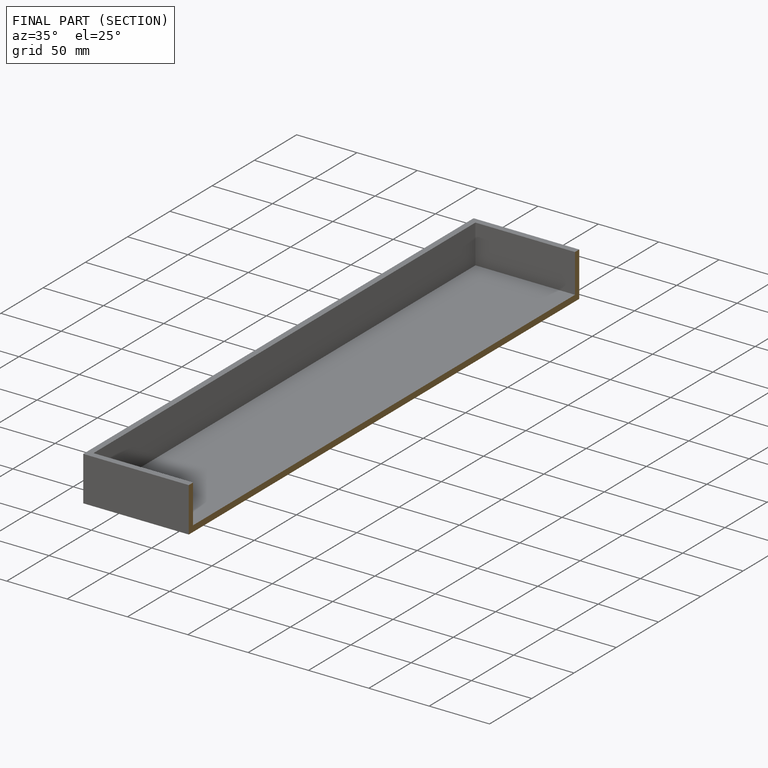
[diagram: finished part — half-section view (interior)]
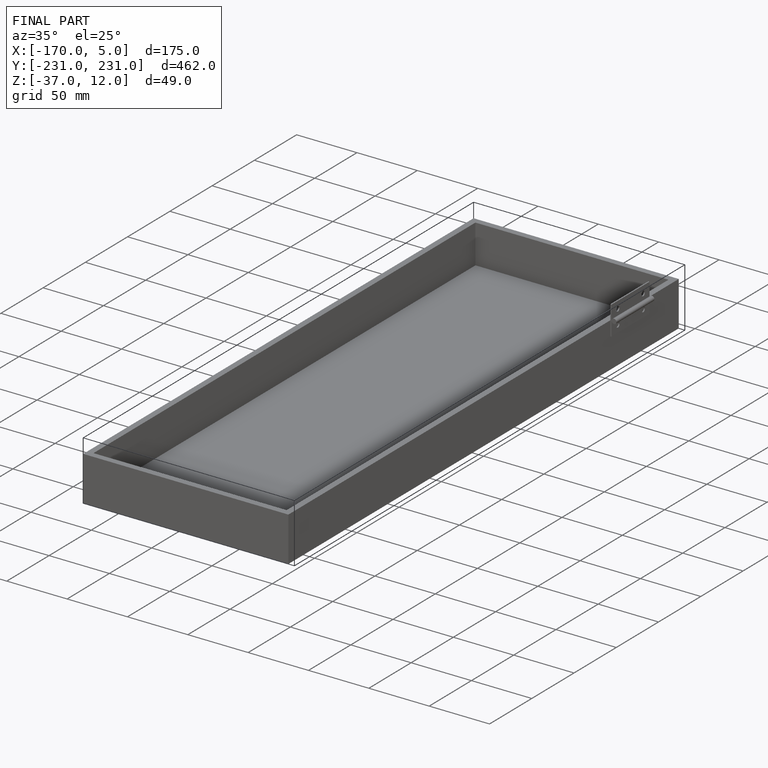
[diagram: finished part — iso view with bounding-box wireframe]
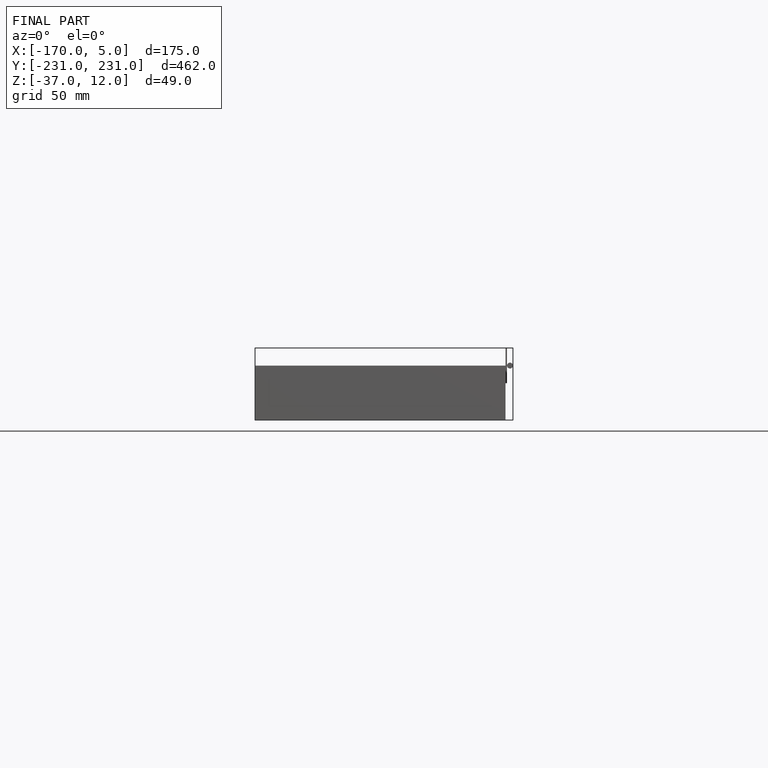
[diagram: finished part — front view with bounding-box wireframe]
